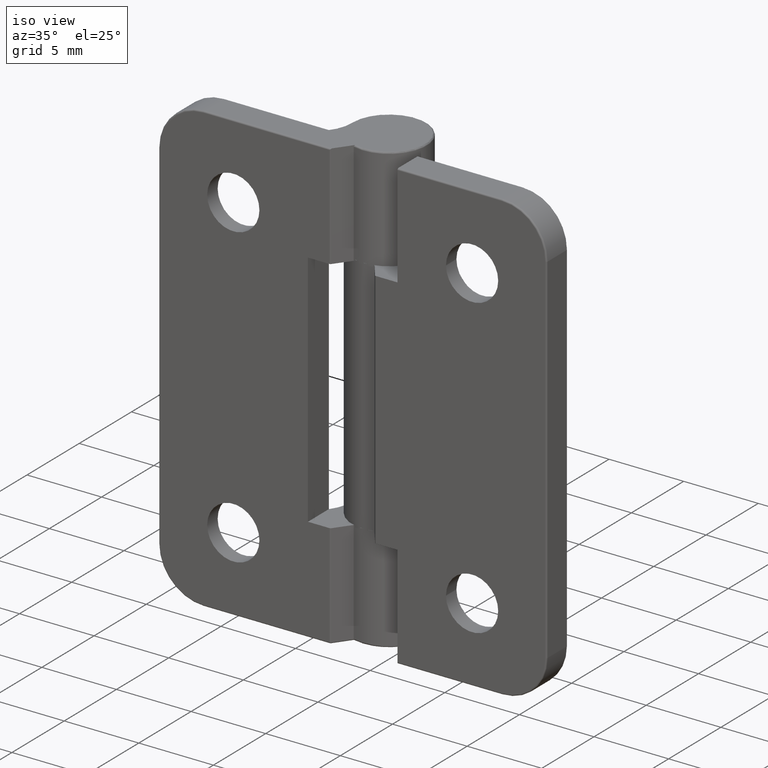
[diagram: clean part render]
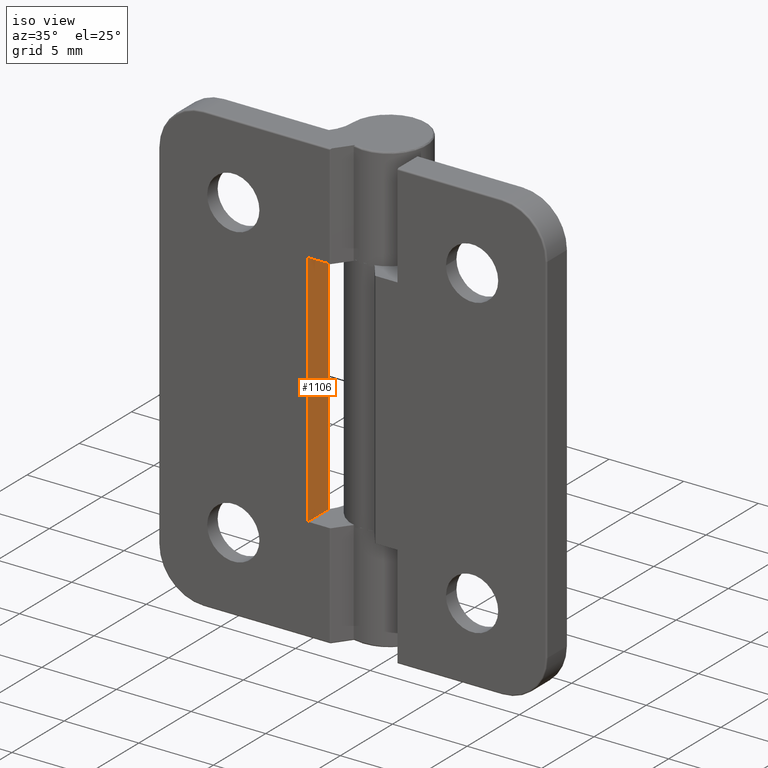
[diagram: same view with one face highlighted and labeled with its STEP entity id]
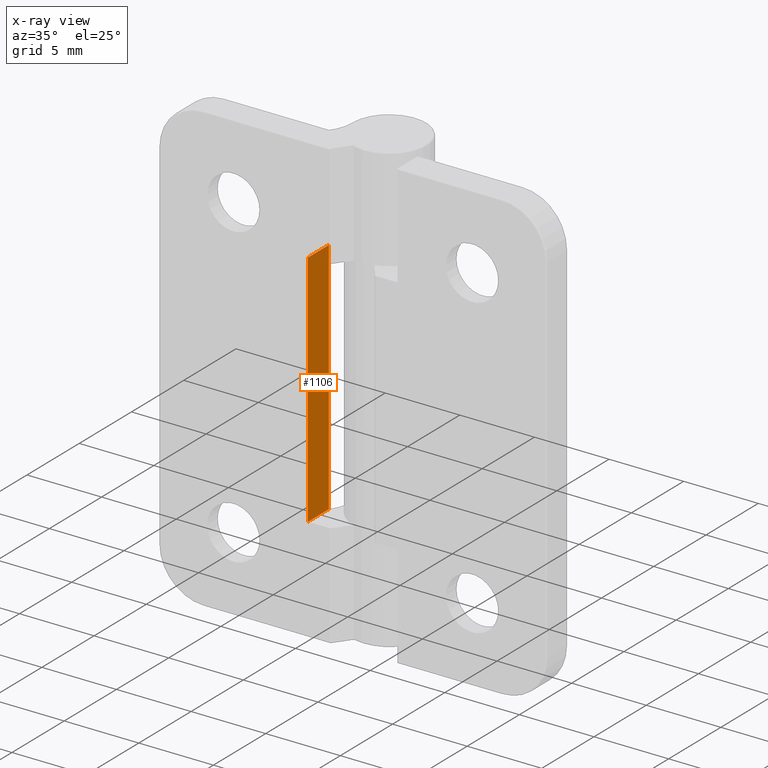
[diagram: x-ray of the same camera — body ghosted, the highlighted face saturated]
A machine part, iso view. The second image highlights one B-rep face of the part: STEP entity #1106.
The next image is the same camera in x-ray: the body ghosted, the highlighted face saturated — about 0% of this face is hidden behind the body in this view.
In plain terms, the highlighted planar face has unit normal (-1, 0, 0).
Its self-contained STEP definition (entity closure, byte-faithful):
#199=FACE_OUTER_BOUND('',#272,.T.);
#272=EDGE_LOOP('',(#770,#771,#772,#773));
#371=LINE('',#1745,#441);
#372=LINE('',#1747,#442);
#373=LINE('',#1749,#443);
#374=LINE('',#1750,#444);
#441=VECTOR('',#1349,16.);
#442=VECTOR('',#1350,2.);
#443=VECTOR('',#1351,16.);
#444=VECTOR('',#1352,2.);
#511=VERTEX_POINT('',#1743);
#512=VERTEX_POINT('',#1744);
#513=VERTEX_POINT('',#1746);
#514=VERTEX_POINT('',#1748);
#613=EDGE_CURVE('',#511,#512,#371,.T.);
#614=EDGE_CURVE('',#513,#511,#372,.T.);
#615=EDGE_CURVE('',#513,#514,#373,.T.);
#616=EDGE_CURVE('',#512,#514,#374,.T.);
#770=ORIENTED_EDGE('',*,*,#613,.F.);
#771=ORIENTED_EDGE('',*,*,#614,.F.);
#772=ORIENTED_EDGE('',*,*,#615,.T.);
#773=ORIENTED_EDGE('',*,*,#616,.F.);
#1084=PLANE('',#1183);
#1106=ADVANCED_FACE('',(#199),#1084,.F.);
#1183=AXIS2_PLACEMENT_3D('',#1742,#1347,#1348);
#1347=DIRECTION('center_axis',(-1.,0.,6.93889390390723E-17));
#1348=DIRECTION('ref_axis',(8.88178419700125E-17,0.,1.));
#1349=DIRECTION('',(6.93889390390723E-17,5.02416507231453E-33,1.));
#1350=DIRECTION('',(0.,-1.,0.));
#1351=DIRECTION('',(0.,0.,1.));
#1352=DIRECTION('',(0.,1.,0.));
#1742=CARTESIAN_POINT('Origin',(-3.,2.,-8.));
#1743=CARTESIAN_POINT('',(-3.,0.,-8.));
#1744=CARTESIAN_POINT('',(-3.,0.,8.));
#1745=CARTESIAN_POINT('',(-3.,-1.38777878078145E-16,-4.));
#1746=CARTESIAN_POINT('',(-3.,2.,-8.));
#1747=CARTESIAN_POINT('',(-3.,2.,-8.));
#1748=CARTESIAN_POINT('',(-3.,2.,8.));
#1749=CARTESIAN_POINT('',(-3.,2.,0.));
#1750=CARTESIAN_POINT('',(-3.,2.,8.));